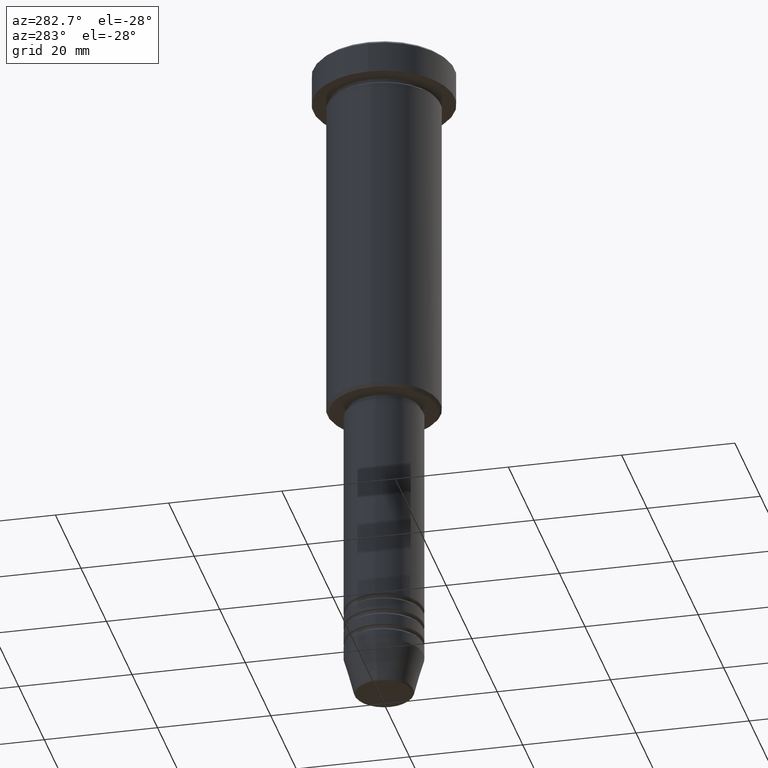
[diagram: clean part render]
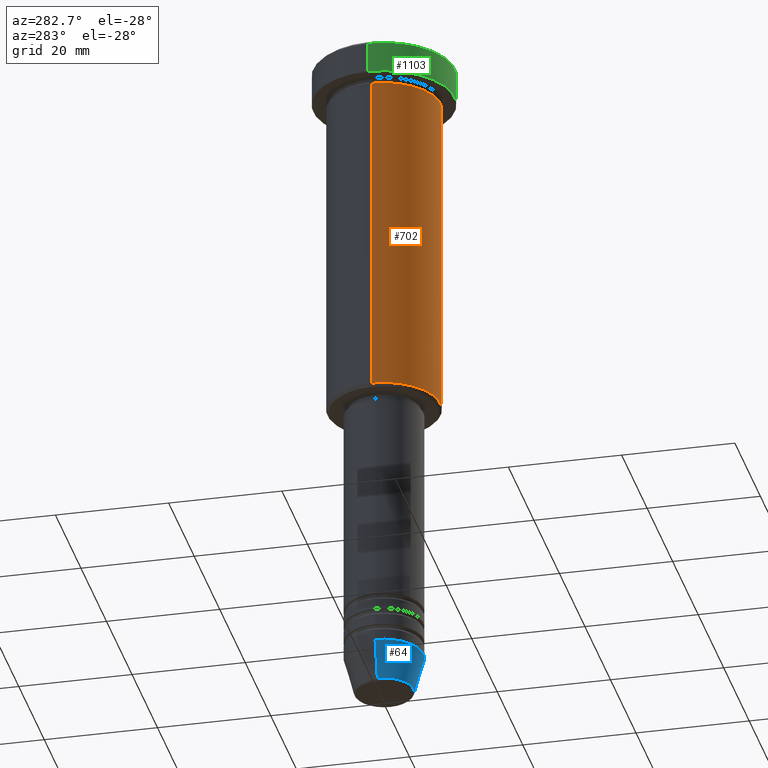
[diagram: same view with three faces highlighted in distinct colors, each labeled with its STEP entity id]
A machine part, auxiliary view with three faces highlighted in distinct colors.
Their STEP definitions:

[orange] entity #702 — the highlighted cylindrical surface (partial cylindrical patch) has radius 10 mm, axis along (-0, -0, 1).
#14 = FACE_OUTER_BOUND ( 'NONE', #121, .T. ) ;
#43 = AXIS2_PLACEMENT_3D ( 'NONE', #423, #857, #597 ) ;
#46 = VERTEX_POINT ( 'NONE', #1050 ) ;
#85 = ORIENTED_EDGE ( 'NONE', *, *, #1076, .T. ) ;
#121 = EDGE_LOOP ( 'NONE', ( #477, #85, #309, #326 ) ) ;
#161 = CYLINDRICAL_SURFACE ( 'NONE', #970, 10.00000000000000000 ) ;
#173 = CIRCLE ( 'NONE', #43, 10.00000000000000000 ) ;
#176 = EDGE_CURVE ( 'NONE', #46, #1006, #248, .T. ) ;
#233 = VECTOR ( 'NONE', #454, 1000.000000000000000 ) ;
#238 = VECTOR ( 'NONE', #601, 1000.000000000000000 ) ;
#248 = LINE ( 'NONE', #820, #233 ) ;
#266 = CARTESIAN_POINT ( 'NONE',  ( 0.000000000000000000, 0.000000000000000000, 0.000000000000000000 ) ) ;
#309 = ORIENTED_EDGE ( 'NONE', *, *, #1158, .T. ) ;
#326 = ORIENTED_EDGE ( 'NONE', *, *, #776, .F. ) ;
#423 = CARTESIAN_POINT ( 'NONE',  ( 0.000000000000000000, 0.000000000000000000, -65.49999999999997158 ) ) ;
#438 = DIRECTION ( 'NONE',  ( 1.000000000000000000, 0.000000000000000000, 0.000000000000000000 ) ) ;
#454 = DIRECTION ( 'NONE',  ( -0.000000000000000000, -0.000000000000000000, 1.000000000000000000 ) ) ;
#477 = ORIENTED_EDGE ( 'NONE', *, *, #176, .F. ) ;
#478 = DIRECTION ( 'NONE',  ( -0.000000000000000000, -0.000000000000000000, 1.000000000000000000 ) ) ;
#501 = AXIS2_PLACEMENT_3D ( 'NONE', #926, #478, #438 ) ;
#545 = CARTESIAN_POINT ( 'NONE',  ( 10.00000000000000000, 0.000000000000000000, -6.999999999999996447 ) ) ;
#587 = LINE ( 'NONE', #1046, #238 ) ;
#597 = DIRECTION ( 'NONE',  ( -1.000000000000000000, 0.000000000000000000, 0.000000000000000000 ) ) ;
#601 = DIRECTION ( 'NONE',  ( -0.000000000000000000, -0.000000000000000000, 1.000000000000000000 ) ) ;
#677 = CARTESIAN_POINT ( 'NONE',  ( -10.00000000000000000, 1.224646799147353256E-15, -6.999999999999996447 ) ) ;
#702 = ADVANCED_FACE ( 'NONE', ( #14 ), #161, .T. ) ;
#741 = VERTEX_POINT ( 'NONE', #545 ) ;
#776 = EDGE_CURVE ( 'NONE', #1006, #741, #872, .T. ) ;
#820 = CARTESIAN_POINT ( 'NONE',  ( -10.00000000000000000, 1.224646799147353256E-15, 0.000000000000000000 ) ) ;
#857 = DIRECTION ( 'NONE',  ( -0.000000000000000000, -0.000000000000000000, 1.000000000000000000 ) ) ;
#872 = CIRCLE ( 'NONE', #501, 10.00000000000000000 ) ;
#926 = CARTESIAN_POINT ( 'NONE',  ( 0.000000000000000000, 0.000000000000000000, -6.999999999999996447 ) ) ;
#970 = AXIS2_PLACEMENT_3D ( 'NONE', #266, #1109, #1173 ) ;
#1003 = VERTEX_POINT ( 'NONE', #1086 ) ;
#1006 = VERTEX_POINT ( 'NONE', #677 ) ;
#1046 = CARTESIAN_POINT ( 'NONE',  ( 10.00000000000000000, 0.000000000000000000, 0.000000000000000000 ) ) ;
#1050 = CARTESIAN_POINT ( 'NONE',  ( -10.00000000000000000, 1.224646799147353256E-15, -65.49999999999997158 ) ) ;
#1076 = EDGE_CURVE ( 'NONE', #46, #1003, #173, .T. ) ;
#1086 = CARTESIAN_POINT ( 'NONE',  ( 10.00000000000000000, 0.000000000000000000, -65.49999999999997158 ) ) ;
#1109 = DIRECTION ( 'NONE',  ( -0.000000000000000000, -0.000000000000000000, 1.000000000000000000 ) ) ;
#1158 = EDGE_CURVE ( 'NONE', #1003, #741, #587, .T. ) ;
#1173 = DIRECTION ( 'NONE',  ( 1.000000000000000000, 0.000000000000000000, 0.000000000000000000 ) ) ;

[blue] entity #64 — the highlighted conical surface has half-angle 15 deg.
#33 = EDGE_CURVE ( 'NONE', #1019, #191, #534, .T. ) ;
#51 = LINE ( 'NONE', #772, #467 ) ;
#64 = ADVANCED_FACE ( 'NONE', ( #152 ), #745, .T. ) ;
#89 = EDGE_CURVE ( 'NONE', #1019, #1025, #141, .T. ) ;
#141 = LINE ( 'NONE', #976, #934 ) ;
#152 = FACE_OUTER_BOUND ( 'NONE', #861, .T. ) ;
#155 = CARTESIAN_POINT ( 'NONE',  ( 0.000000000000000000, 0.000000000000000000, -114.0000000000000142 ) ) ;
#191 = VERTEX_POINT ( 'NONE', #1105 ) ;
#196 = ORIENTED_EDGE ( 'NONE', *, *, #33, .T. ) ;
#198 = CIRCLE ( 'NONE', #539, 7.000000000000000000 ) ;
#285 = DIRECTION ( 'NONE',  ( 0.2588190451025213501, 0.000000000000000000, 0.9659258262890680902 ) ) ;
#327 = ORIENTED_EDGE ( 'NONE', *, *, #639, .T. ) ;
#440 = CARTESIAN_POINT ( 'NONE',  ( 0.000000000000000000, 0.000000000000000000, -114.0000000000000142 ) ) ;
#443 = AXIS2_PLACEMENT_3D ( 'NONE', #440, #788, #1165 ) ;
#467 = VECTOR ( 'NONE', #285, 1000.000000000000000 ) ;
#482 = ORIENTED_EDGE ( 'NONE', *, *, #831, .F. ) ;
#532 = ORIENTED_EDGE ( 'NONE', *, *, #89, .F. ) ;
#534 = CIRCLE ( 'NONE', #1033, 5.223655072137193045 ) ;
#539 = AXIS2_PLACEMENT_3D ( 'NONE', #155, #716, #972 ) ;
#639 = EDGE_CURVE ( 'NONE', #191, #833, #51, .T. ) ;
#704 = DIRECTION ( 'NONE',  ( 1.000000000000000000, 0.000000000000000000, 0.000000000000000000 ) ) ;
#716 = DIRECTION ( 'NONE',  ( -0.000000000000000000, -0.000000000000000000, 1.000000000000000000 ) ) ;
#745 = CONICAL_SURFACE ( 'NONE', #443, 7.000000000000000000, 0.2617993877991500740 ) ;
#772 = CARTESIAN_POINT ( 'NONE',  ( 7.000000000000000000, 0.000000000000000000, -114.0000000000000142 ) ) ;
#788 = DIRECTION ( 'NONE',  ( -0.000000000000000000, -0.000000000000000000, 1.000000000000000000 ) ) ;
#794 = DIRECTION ( 'NONE',  ( -0.000000000000000000, -0.000000000000000000, 1.000000000000000000 ) ) ;
#831 = EDGE_CURVE ( 'NONE', #1025, #833, #198, .T. ) ;
#833 = VERTEX_POINT ( 'NONE', #1102 ) ;
#844 = CARTESIAN_POINT ( 'NONE',  ( -7.000000000000000000, 8.572527594031473190E-16, -114.0000000000000142 ) ) ;
#861 = EDGE_LOOP ( 'NONE', ( #532, #196, #327, #482 ) ) ;
#934 = VECTOR ( 'NONE', #1157, 1000.000000000000000 ) ;
#972 = DIRECTION ( 'NONE',  ( 1.000000000000000000, 0.000000000000000000, 0.000000000000000000 ) ) ;
#976 = CARTESIAN_POINT ( 'NONE',  ( -7.000000000000000000, 8.572527594031473190E-16, -114.0000000000000142 ) ) ;
#1019 = VERTEX_POINT ( 'NONE', #1129 ) ;
#1025 = VERTEX_POINT ( 'NONE', #844 ) ;
#1033 = AXIS2_PLACEMENT_3D ( 'NONE', #1077, #794, #704 ) ;
#1077 = CARTESIAN_POINT ( 'NONE',  ( 0.000000000000000000, 0.000000000000000000, -120.6294095225512564 ) ) ;
#1102 = CARTESIAN_POINT ( 'NONE',  ( 7.000000000000000000, 0.000000000000000000, -114.0000000000000142 ) ) ;
#1105 = CARTESIAN_POINT ( 'NONE',  ( 5.223655072137193045, 0.000000000000000000, -120.6294095225512564 ) ) ;
#1129 = CARTESIAN_POINT ( 'NONE',  ( -5.223655072137193045, 7.484830028987060174E-16, -120.6294095225512564 ) ) ;
#1157 = DIRECTION ( 'NONE',  ( -0.2588190451025213501, 3.169619151431772337E-17, 0.9659258262890680902 ) ) ;
#1165 = DIRECTION ( 'NONE',  ( 1.000000000000000000, 0.000000000000000000, 0.000000000000000000 ) ) ;

[green] entity #1103 — the highlighted cylindrical surface (partial cylindrical patch) has radius 12.5 mm, axis along (-0, -0, 1).
#58 = CARTESIAN_POINT ( 'NONE',  ( 12.50000000000000000, 0.000000000000000000, -0.5000000000000056621 ) ) ;
#61 = DIRECTION ( 'NONE',  ( -0.000000000000000000, -0.000000000000000000, 1.000000000000000000 ) ) ;
#62 = DIRECTION ( 'NONE',  ( 1.000000000000000000, 0.000000000000000000, 0.000000000000000000 ) ) ;
#67 = LINE ( 'NONE', #144, #1034 ) ;
#96 = EDGE_CURVE ( 'NONE', #554, #838, #168, .T. ) ;
#120 = CARTESIAN_POINT ( 'NONE',  ( -12.50000000000000000, 1.530808498934191521E-15, -0.5000000000000056621 ) ) ;
#132 = AXIS2_PLACEMENT_3D ( 'NONE', #157, #525, #262 ) ;
#144 = CARTESIAN_POINT ( 'NONE',  ( -12.50000000000000000, 1.530808498934191521E-15, 0.000000000000000000 ) ) ;
#151 = EDGE_CURVE ( 'NONE', #154, #382, #1115, .T. ) ;
#154 = VERTEX_POINT ( 'NONE', #58 ) ;
#157 = CARTESIAN_POINT ( 'NONE',  ( 0.000000000000000000, 0.000000000000000000, -5.999999999999996447 ) ) ;
#168 = CIRCLE ( 'NONE', #132, 12.50000000000000000 ) ;
#252 = DIRECTION ( 'NONE',  ( -0.000000000000000000, -0.000000000000000000, 1.000000000000000000 ) ) ;
#262 = DIRECTION ( 'NONE',  ( 1.000000000000000000, 0.000000000000000000, 0.000000000000000000 ) ) ;
#382 = VERTEX_POINT ( 'NONE', #120 ) ;
#486 = ORIENTED_EDGE ( 'NONE', *, *, #511, .F. ) ;
#506 = DIRECTION ( 'NONE',  ( 1.000000000000000000, 0.000000000000000000, 0.000000000000000000 ) ) ;
#511 = EDGE_CURVE ( 'NONE', #554, #382, #67, .T. ) ;
#525 = DIRECTION ( 'NONE',  ( -0.000000000000000000, -0.000000000000000000, 1.000000000000000000 ) ) ;
#528 = CARTESIAN_POINT ( 'NONE',  ( 12.50000000000000000, 0.000000000000000000, -5.999999999999996447 ) ) ;
#554 = VERTEX_POINT ( 'NONE', #1056 ) ;
#580 = EDGE_CURVE ( 'NONE', #838, #154, #965, .T. ) ;
#620 = EDGE_LOOP ( 'NONE', ( #486, #988, #1181, #1114 ) ) ;
#686 = CARTESIAN_POINT ( 'NONE',  ( 0.000000000000000000, 0.000000000000000000, -0.5000000000000056621 ) ) ;
#690 = CARTESIAN_POINT ( 'NONE',  ( 0.000000000000000000, 0.000000000000000000, 0.000000000000000000 ) ) ;
#774 = FACE_OUTER_BOUND ( 'NONE', #620, .T. ) ;
#778 = AXIS2_PLACEMENT_3D ( 'NONE', #686, #1057, #62 ) ;
#782 = AXIS2_PLACEMENT_3D ( 'NONE', #690, #969, #506 ) ;
#783 = CARTESIAN_POINT ( 'NONE',  ( 12.50000000000000000, 0.000000000000000000, 0.000000000000000000 ) ) ;
#785 = CYLINDRICAL_SURFACE ( 'NONE', #782, 12.50000000000000000 ) ;
#838 = VERTEX_POINT ( 'NONE', #528 ) ;
#936 = VECTOR ( 'NONE', #252, 1000.000000000000000 ) ;
#965 = LINE ( 'NONE', #783, #936 ) ;
#969 = DIRECTION ( 'NONE',  ( -0.000000000000000000, -0.000000000000000000, 1.000000000000000000 ) ) ;
#988 = ORIENTED_EDGE ( 'NONE', *, *, #96, .T. ) ;
#1034 = VECTOR ( 'NONE', #61, 1000.000000000000000 ) ;
#1056 = CARTESIAN_POINT ( 'NONE',  ( -12.50000000000000000, 1.530808498934191521E-15, -5.999999999999996447 ) ) ;
#1057 = DIRECTION ( 'NONE',  ( 0.000000000000000000, 0.000000000000000000, -1.000000000000000000 ) ) ;
#1103 = ADVANCED_FACE ( 'NONE', ( #774 ), #785, .T. ) ;
#1114 = ORIENTED_EDGE ( 'NONE', *, *, #151, .T. ) ;
#1115 = CIRCLE ( 'NONE', #778, 12.50000000000000000 ) ;
#1181 = ORIENTED_EDGE ( 'NONE', *, *, #580, .T. ) ;